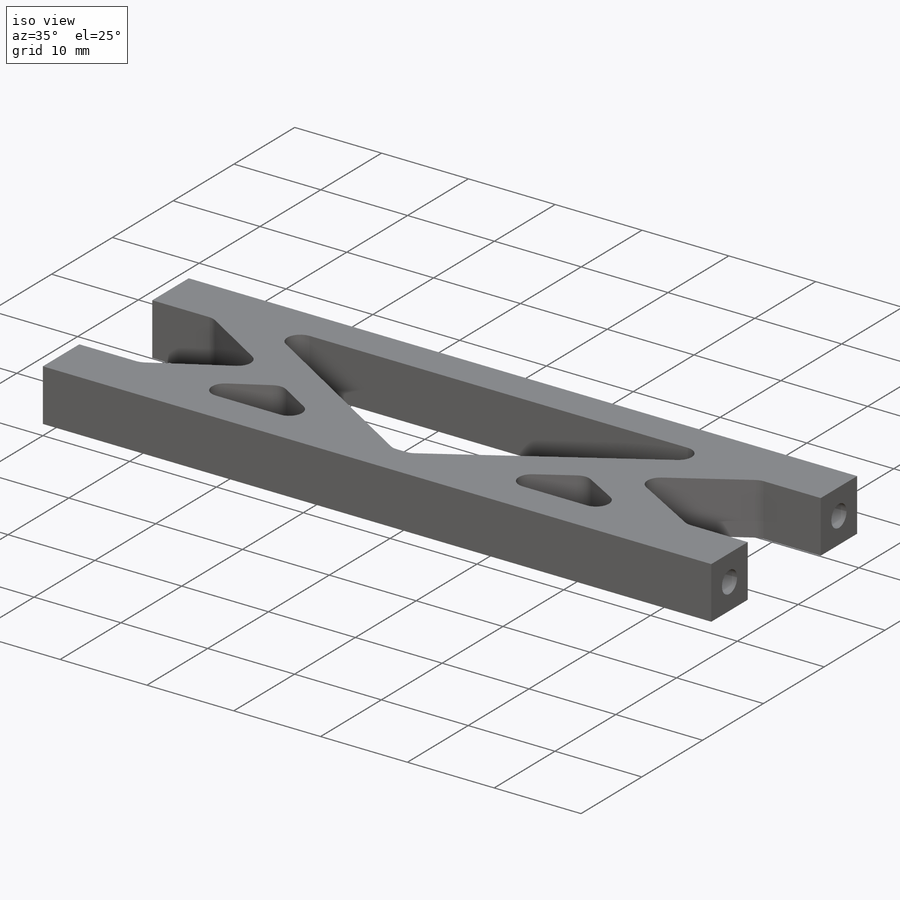
[diagram: iso view]
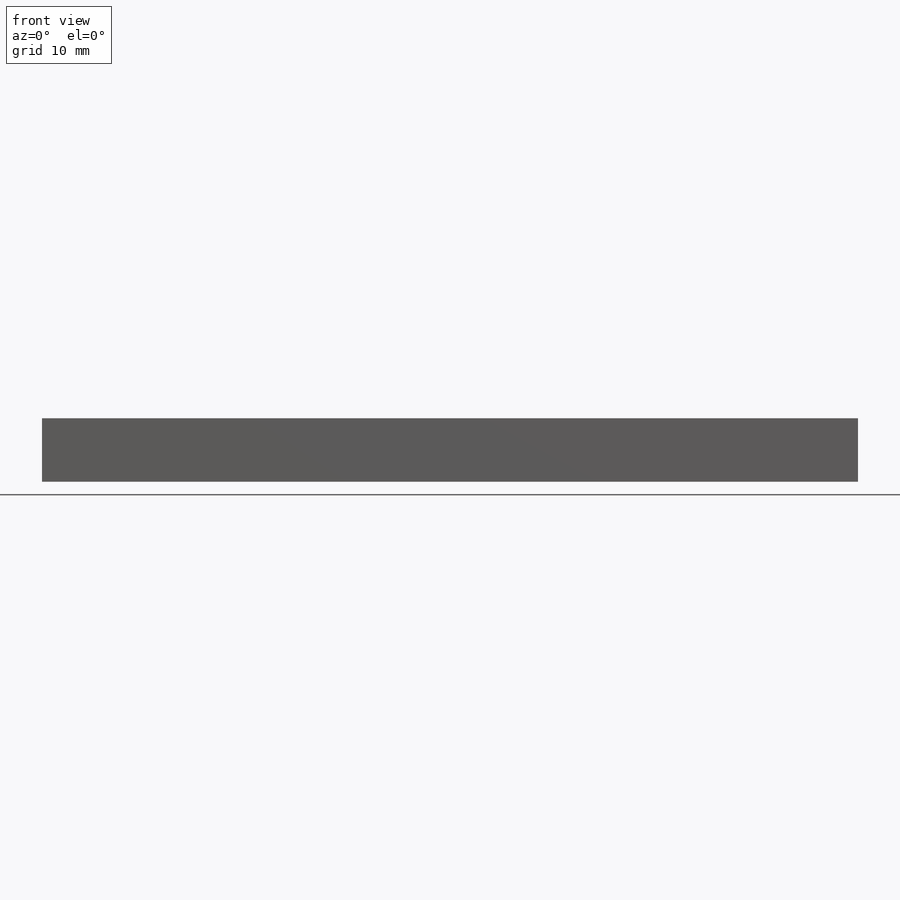
[diagram: front view]
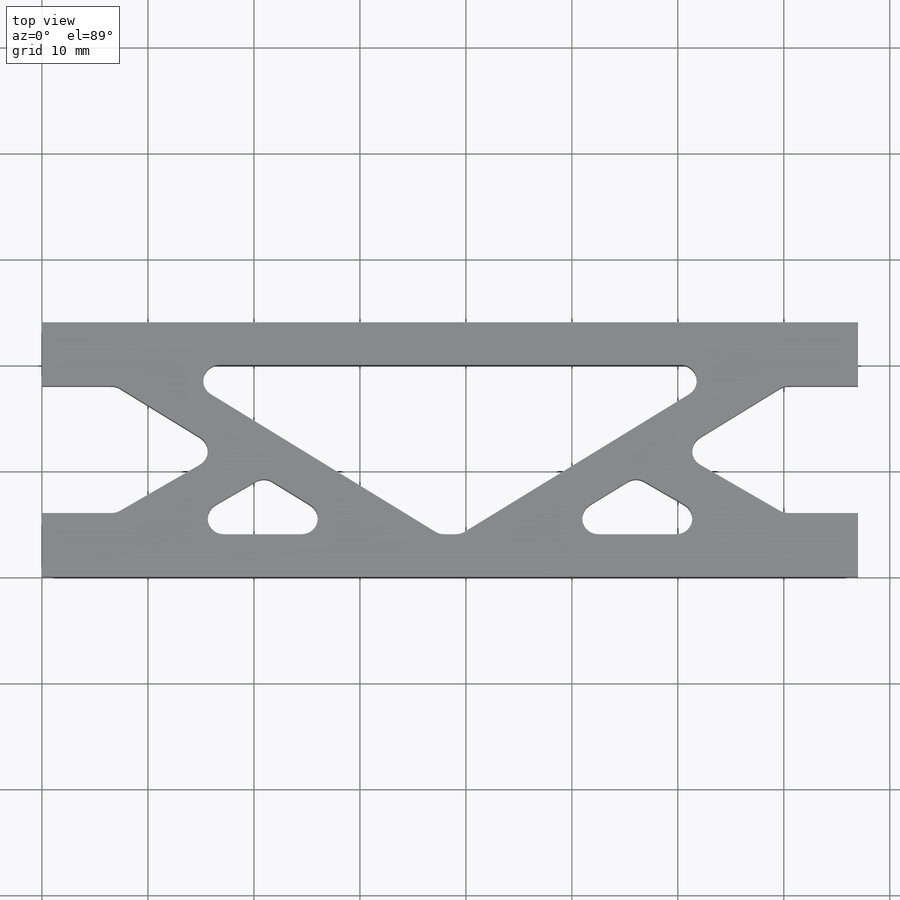
[diagram: top view]
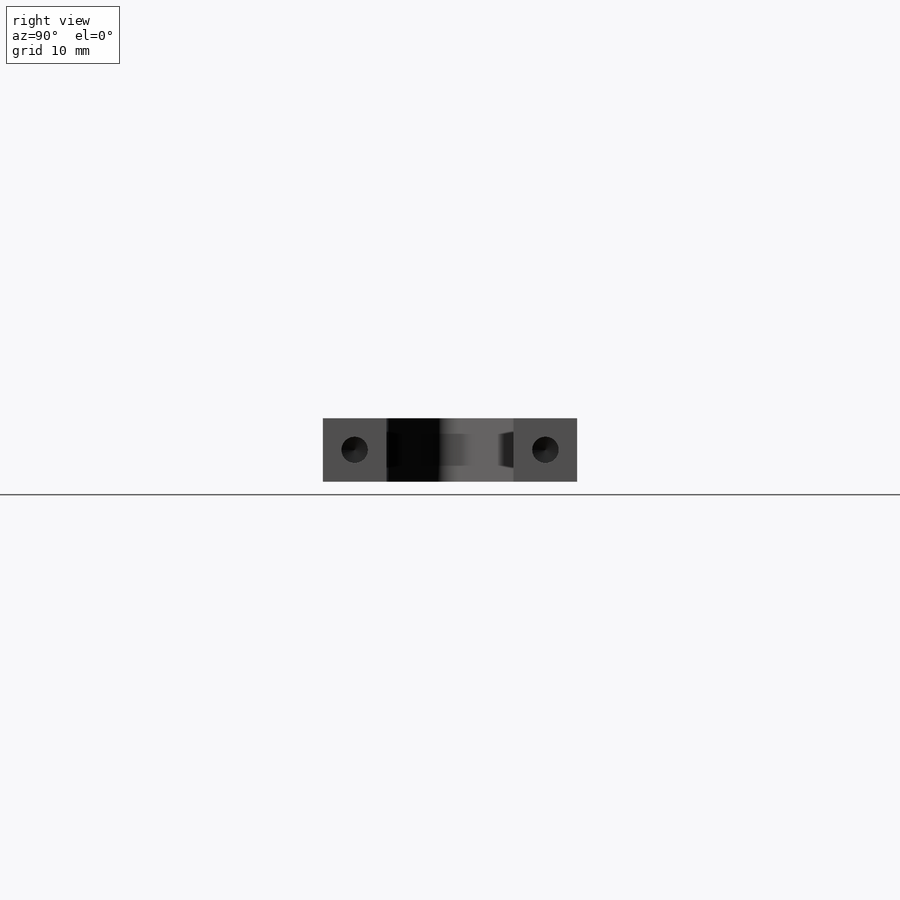
[diagram: right view]
SOLIDWORKS PART (.sldprt)
format: sldprt  version: not decoded by parser v0  size: 328,704 bytes
history: native  units: mm
features: sketch x6, hole x2, material x1, extrude x1, cut_extrude x1, fillet x1 (+11 scaffold rows collapsed)
feature tree (23):
  scaffold x11  (default folders/planes/origin — collapsed)
  material  "1060 Alloy"
  sketch  "Sketch1"  dims[D1=24.0mm D2=77.0mm]
  extrude  "Boss-Extrude1"  Depth=6mm
  sketch  "Sketch2"  dims[c1.D4=6.0mm c1.D5=8.0mm c1.D1=10.0mm c1.D2=18.0mm c1.D3=18.0mm c2.D1=6.0mm c2.D2=6.0mm c2.D3=6.0mm c2.D4=6.0mm c2.D5=~20.608309mm c3.D5=35.0deg c3.D6=25.0mm c3.D3=4.0mm c3.D4=4.0mm c4.D5=4.0mm c4.D6=4.0mm c4.D7=4.0mm c4.D8=4.0mm c4.D9=2.0mm c4.D10=~10.505417mm c5.D10=35.0deg c5.D11=7.0mm c6.D10=~14.262107mm c7.D10=30.0deg c7.D12=~24.822167mm c8.D12=30.0deg]
  cut_extrude  "Cut-Extrude1"  [1 undecoded]
  hole  "Tap Drill for M3 Tap1"  Diameter=2.5mm Depth=10mm
  sketch  "Sketch4"  dims[D1=3.0mm D2=3.0mm D3=3.0mm]
  sketch  "Sketch3"  dims[hole-wizard template sketch: 50 standard entries collapsed; hole parameters above]
  hole  "Tap Drill for M3 Tap2"  Diameter=2.5mm Depth=10mm
  sketch  "Sketch6"  dims[D1=3.0mm D2=3.0mm D3=3.0mm D4=3.0mm]
  sketch  "Sketch5"  dims[hole-wizard template sketch: 50 standard entries collapsed; hole parameters above]
  fillet  "Fillet1"  Radius=1.5mm
decode coverage: 10 of 11 modeling features carry decoded parameters
note: ~ marks probable driven/reference dimensions
note: 1 parameter value undecoded
note: suppression state not decoded; provenance and decode notes live in map.json
